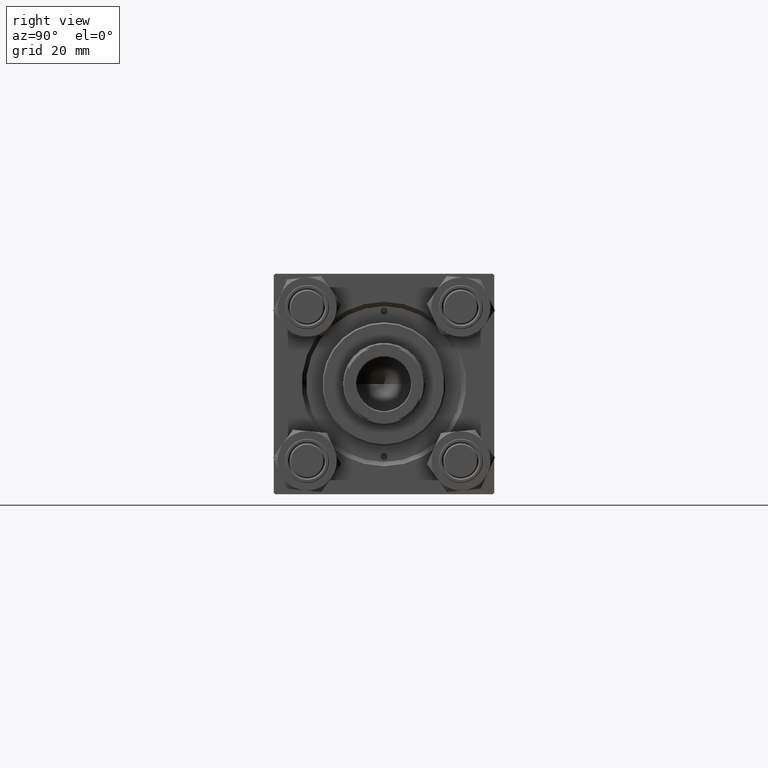
[diagram: clean part render]
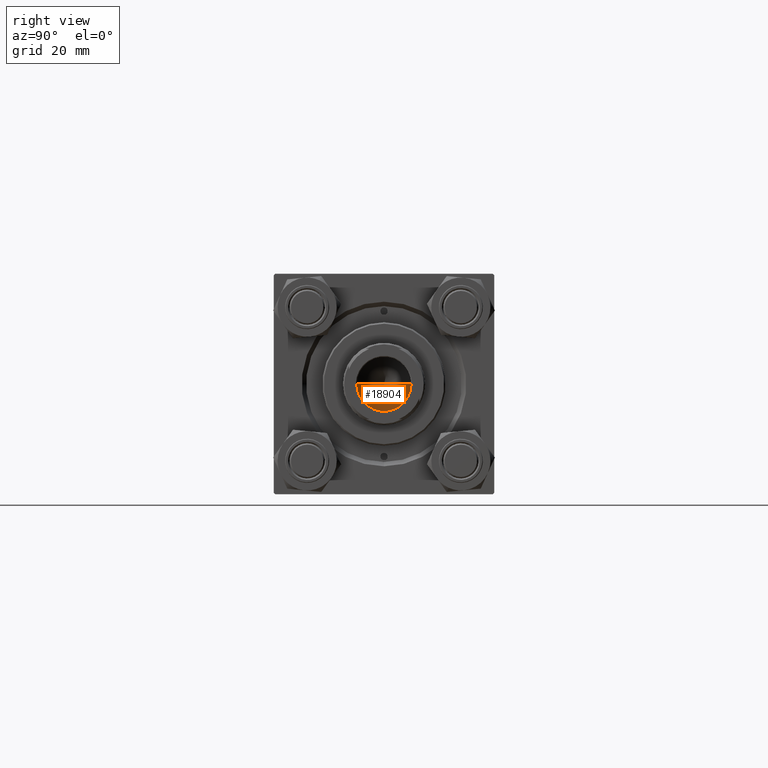
[diagram: same view with one face highlighted and labeled with its STEP entity id]
A machine part, right view. The second image highlights one B-rep face of the part: STEP entity #18904.
In plain terms, the highlighted conical surface has half-angle 59 deg.
Its self-contained STEP definition (entity closure, byte-faithful):
#2570 = FACE_OUTER_BOUND ( 'NONE', #42578, .T. ) ;
#2823 = ORIENTED_EDGE ( 'NONE', *, *, #34223, .F. ) ;
#7742 = ORIENTED_EDGE ( 'NONE', *, *, #8025, .T. ) ;
#8025 = EDGE_CURVE ( 'NONE', #15569, #45484, #31020, .T. ) ;
#13237 = CARTESIAN_POINT ( 'NONE',  ( 9.249999999999992895, 0.000000000000000000, 107.0000000000000142 ) ) ;
#13472 = DIRECTION ( 'NONE',  ( -0.8571673007021117785, 1.049727191138617956E-16, 0.5150380749100550437 ) ) ;
#13715 = CARTESIAN_POINT ( 'NONE',  ( 0.000000000000000000, 0.000000000000000000, 107.0000000000000142 ) ) ;
#14157 = DIRECTION ( 'NONE',  ( 1.000000000000000000, 0.000000000000000000, 0.000000000000000000 ) ) ;
#15569 = VERTEX_POINT ( 'NONE', #41841 ) ;
#16178 = EDGE_CURVE ( 'NONE', #17415, #15569, #32872, .T. ) ;
#17415 = VERTEX_POINT ( 'NONE', #27422 ) ;
#18557 = VECTOR ( 'NONE', #13472, 1000.000000000000000 ) ;
#18904 = ADVANCED_FACE ( 'NONE', ( #2570 ), #33743, .F. ) ;
#21758 = LINE ( 'NONE', #48250, #18557 ) ;
#22262 = DIRECTION ( 'NONE',  ( 1.000000000000000000, 0.000000000000000000, 0.000000000000000000 ) ) ;
#22482 = AXIS2_PLACEMENT_3D ( 'NONE', #13715, #37402, #22262 ) ;
#25907 = ORIENTED_EDGE ( 'NONE', *, *, #16178, .T. ) ;
#27422 = CARTESIAN_POINT ( 'NONE',  ( -9.769621978240258809E-15, 0.000000000000000000, 101.4420392739950785 ) ) ;
#31020 = CIRCLE ( 'NONE', #39101, 9.249999999999992895 ) ;
#32058 = VECTOR ( 'NONE', #48262, 1000.000000000000000 ) ;
#32872 = LINE ( 'NONE', #13237, #32058 ) ;
#33302 = DIRECTION ( 'NONE',  ( -0.000000000000000000, -0.000000000000000000, 1.000000000000000000 ) ) ;
#33552 = CARTESIAN_POINT ( 'NONE',  ( 0.000000000000000000, 0.000000000000000000, 107.0000000000000142 ) ) ;
#33743 = CONICAL_SURFACE ( 'NONE', #22482, 9.249999999999992895, 1.029744258676653423 ) ;
#34223 = EDGE_CURVE ( 'NONE', #17415, #45484, #21758, .T. ) ;
#37402 = DIRECTION ( 'NONE',  ( -0.000000000000000000, -0.000000000000000000, 1.000000000000000000 ) ) ;
#39101 = AXIS2_PLACEMENT_3D ( 'NONE', #33552, #33302, #14157 ) ;
#41841 = CARTESIAN_POINT ( 'NONE',  ( 9.249999999999992895, 0.000000000000000000, 107.0000000000000142 ) ) ;
#42578 = EDGE_LOOP ( 'NONE', ( #2823, #25907, #7742 ) ) ;
#45484 = VERTEX_POINT ( 'NONE', #47581 ) ;
#47581 = CARTESIAN_POINT ( 'NONE',  ( -9.249999999999992895, 1.132798289211300712E-15, 107.0000000000000142 ) ) ;
#48250 = CARTESIAN_POINT ( 'NONE',  ( -9.249999999999992895, 1.132798289211300712E-15, 107.0000000000000142 ) ) ;
#48262 = DIRECTION ( 'NONE',  ( 0.8571673007021117785, 0.000000000000000000, 0.5150380749100550437 ) ) ;